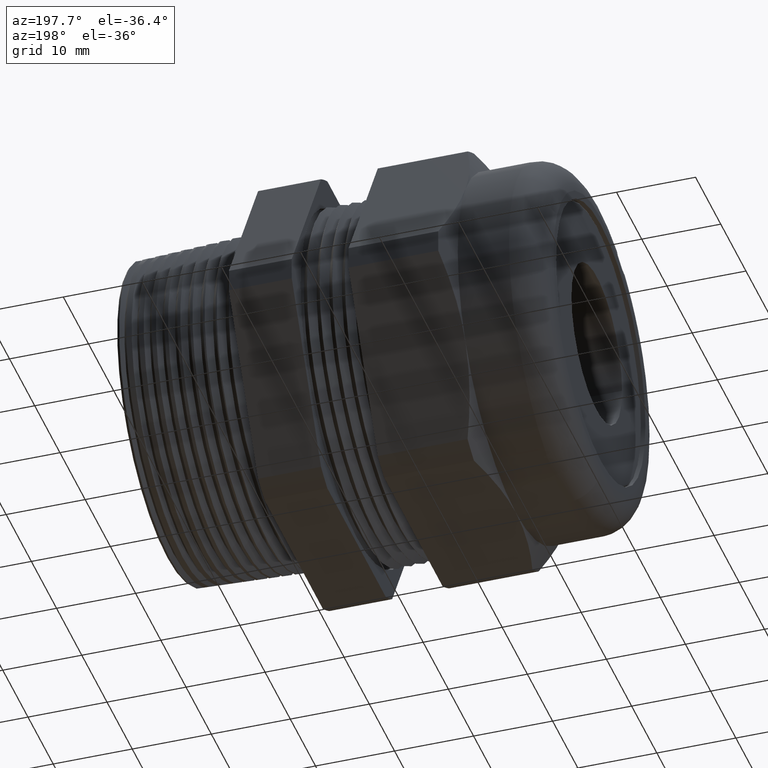
[diagram: clean part render]
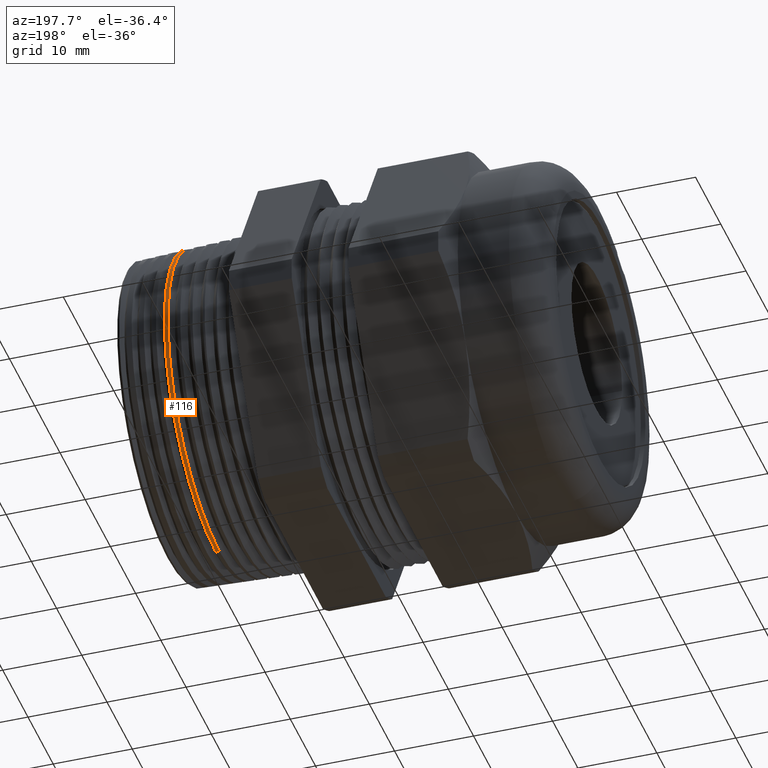
[diagram: same view with one face highlighted and labeled with its STEP entity id]
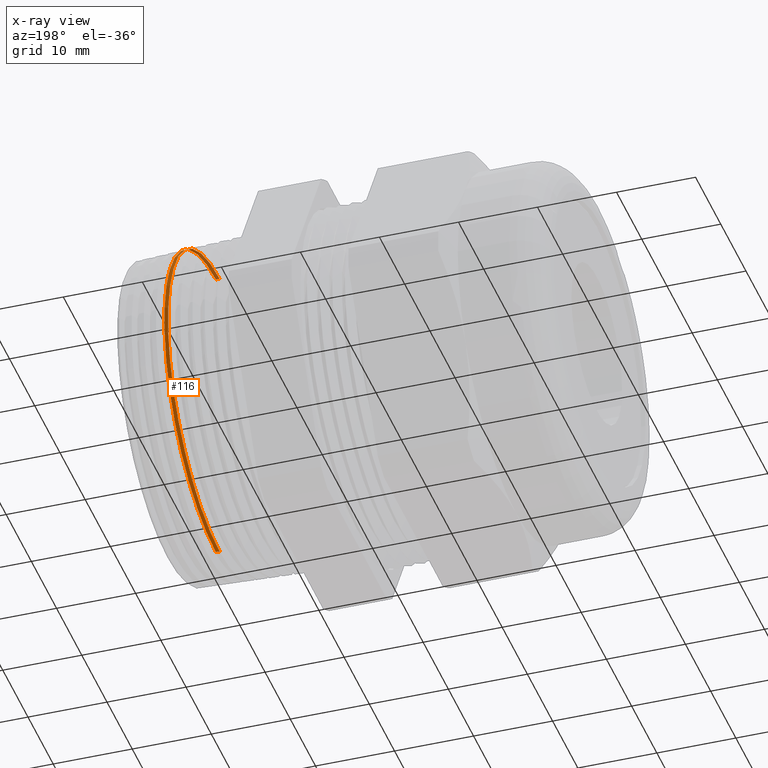
[diagram: x-ray of the same camera — body ghosted, the highlighted face saturated]
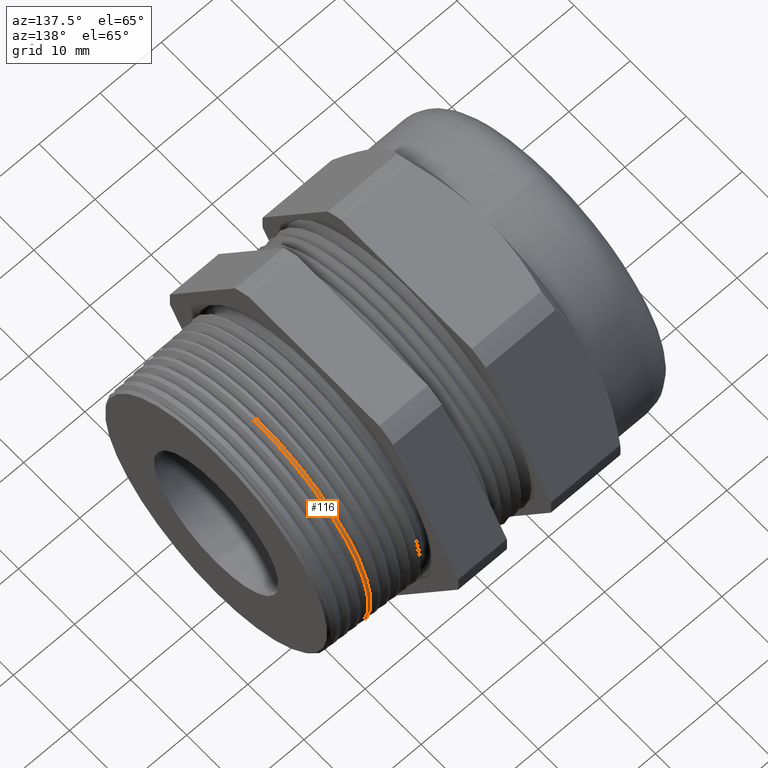
[diagram: same view with one face highlighted and labeled with its STEP entity id]
A machine part, auxiliary view. The second image highlights one B-rep face of the part: STEP entity #116.
The next image is the same camera in x-ray: the body ghosted, the highlighted face saturated — about 9% of this face is hidden behind the body in this view.
A second angle (auxiliary view) of the same face is appended — the face is thin or edge-on in the first view.
In plain terms, the highlighted conical surface has half-angle 2.5 deg.
Its self-contained STEP definition (entity closure, byte-faithful):
#71 = ORIENTED_EDGE ( 'NONE', *, *, #775, .F. ) ;
#83 = EDGE_CURVE ( 'NONE', #776, #675, #1249, .T. ) ;
#84 = ORIENTED_EDGE ( 'NONE', *, *, #83, .T. ) ;
#104 = ORIENTED_EDGE ( 'NONE', *, *, #107, .F. ) ;
#106 = ORIENTED_EDGE ( 'NONE', *, *, #644, .F. ) ;
#107 = EDGE_CURVE ( 'NONE', #778, #128, #1266, .T. ) ;
#114 = EDGE_LOOP ( 'NONE', ( #71, #84, #106, #104 ) ) ;
#116 = ADVANCED_FACE ( 'NONE', ( #1309 ), #1308, .T. ) ;
#128 = VERTEX_POINT ( 'NONE', #1344 ) ;
#644 = EDGE_CURVE ( 'NONE', #128, #675, #2331, .T. ) ;
#675 = VERTEX_POINT ( 'NONE', #2394 ) ;
#775 = EDGE_CURVE ( 'NONE', #776, #778, #2595, .T. ) ;
#776 = VERTEX_POINT ( 'NONE', #2586 ) ;
#778 = VERTEX_POINT ( 'NONE', #2581 ) ;
#1246 = DIRECTION ( 'NONE',  ( -0.9990482215818576900, 5.341834311772756400E-018, -0.04361938736533627100 ) ) ;
#1247 = VECTOR ( 'NONE', #1246, 39.37007874015748100 ) ;
#1248 = CARTESIAN_POINT ( 'NONE',  ( 0.6299999999999997800, 9.705247578930107000E-017, -0.7924936059676371800 ) ) ;
#1249 = LINE ( 'NONE', #1248, #1247 ) ;
#1263 = DIRECTION ( 'NONE',  ( -0.9990482215818576900, 0.0000000000000000000, 0.04361938736533627100 ) ) ;
#1264 = VECTOR ( 'NONE', #1263, 39.37007874015748100 ) ;
#1265 = CARTESIAN_POINT ( 'NONE',  ( 0.6299999999999997800, 0.0000000000000000000, 0.7924936059676371800 ) ) ;
#1266 = LINE ( 'NONE', #1265, #1264 ) ;
#1304 = DIRECTION ( 'NONE',  ( 0.0000000000000000000, 0.0000000000000000000, 1.000000000000000000 ) ) ;
#1305 = DIRECTION ( 'NONE',  ( -1.000000000000000000, 0.0000000000000000000, 0.0000000000000000000 ) ) ;
#1306 = AXIS2_PLACEMENT_3D ( 'NONE', #1313, #1305, #1304 ) ;
#1308 = CONICAL_SURFACE ( 'NONE', #1306, 0.7924936059676371800, 0.04363323129985850800 ) ;
#1309 = FACE_OUTER_BOUND ( 'NONE', #114, .T. ) ;
#1313 = CARTESIAN_POINT ( 'NONE',  ( 0.6299999999999997800, 0.0000000000000000000, 0.0000000000000000000 ) ) ;
#1344 = CARTESIAN_POINT ( 'NONE',  ( 0.3693533222417902400, 0.0000000000000000000, 0.8038736856845318800 ) ) ;
#2327 = DIRECTION ( 'NONE',  ( 0.0000000000000000000, 0.0000000000000000000, -1.000000000000000000 ) ) ;
#2328 = DIRECTION ( 'NONE',  ( -1.000000000000000000, 0.0000000000000000000, 0.0000000000000000000 ) ) ;
#2329 = CARTESIAN_POINT ( 'NONE',  ( 0.3693533222417902400, 0.0000000000000000000, 0.0000000000000000000 ) ) ;
#2330 = AXIS2_PLACEMENT_3D ( 'NONE', #2329, #2328, #2327 ) ;
#2331 = CIRCLE ( 'NONE', #2330, 0.8038736856845318800 ) ;
#2394 = CARTESIAN_POINT ( 'NONE',  ( 0.3693533222417902400, 9.844613360923474400E-017, -0.8038736856845318800 ) ) ;
#2581 = CARTESIAN_POINT ( 'NONE',  ( 0.3877748966425698700, 0.0000000000000000000, 0.8030693823763346300 ) ) ;
#2586 = CARTESIAN_POINT ( 'NONE',  ( 0.3877748966425698700, 9.839688423563837800E-017, -0.8030693823763346300 ) ) ;
#2587 = DIRECTION ( 'NONE',  ( 0.0000000000000000000, 0.0000000000000000000, 1.000000000000000000 ) ) ;
#2588 = DIRECTION ( 'NONE',  ( 1.000000000000000000, 0.0000000000000000000, 0.0000000000000000000 ) ) ;
#2589 = CARTESIAN_POINT ( 'NONE',  ( 0.3877748966425698700, 0.0000000000000000000, 0.0000000000000000000 ) ) ;
#2590 = AXIS2_PLACEMENT_3D ( 'NONE', #2589, #2588, #2587 ) ;
#2595 = CIRCLE ( 'NONE', #2590, 0.8030693823763346300 ) ;